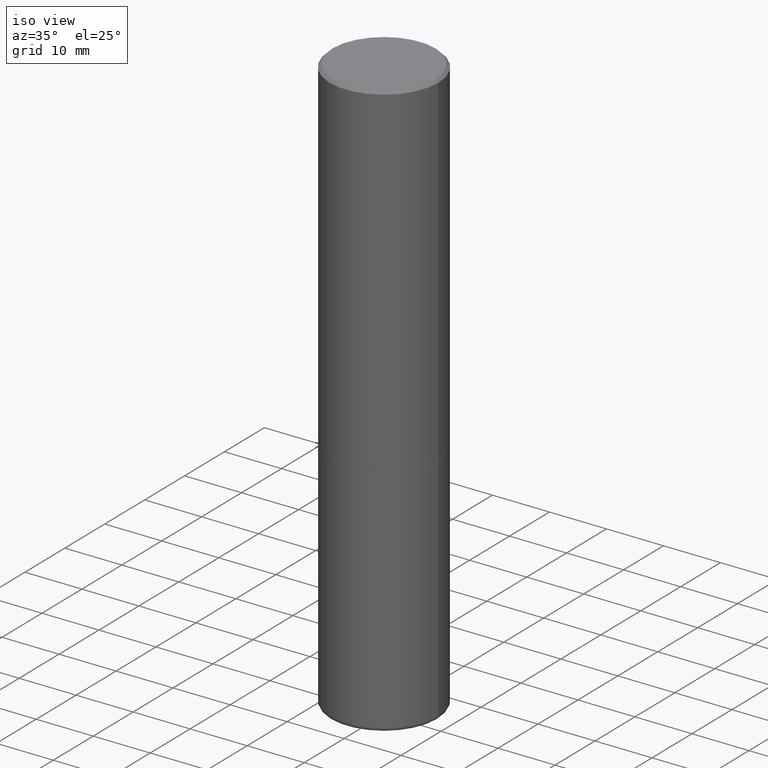
[diagram: clean part render]
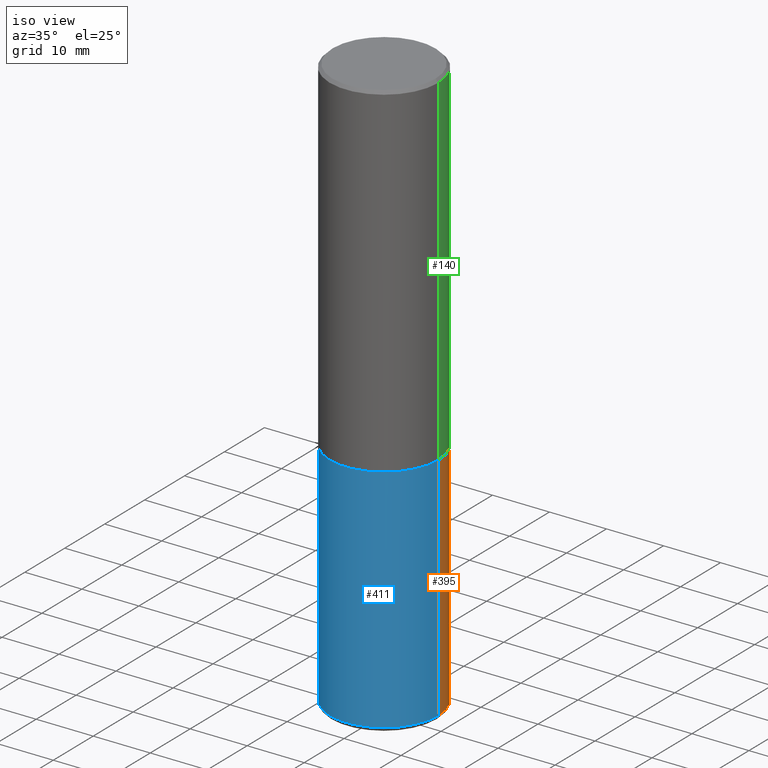
[diagram: same view with three faces highlighted in distinct colors, each labeled with its STEP entity id]
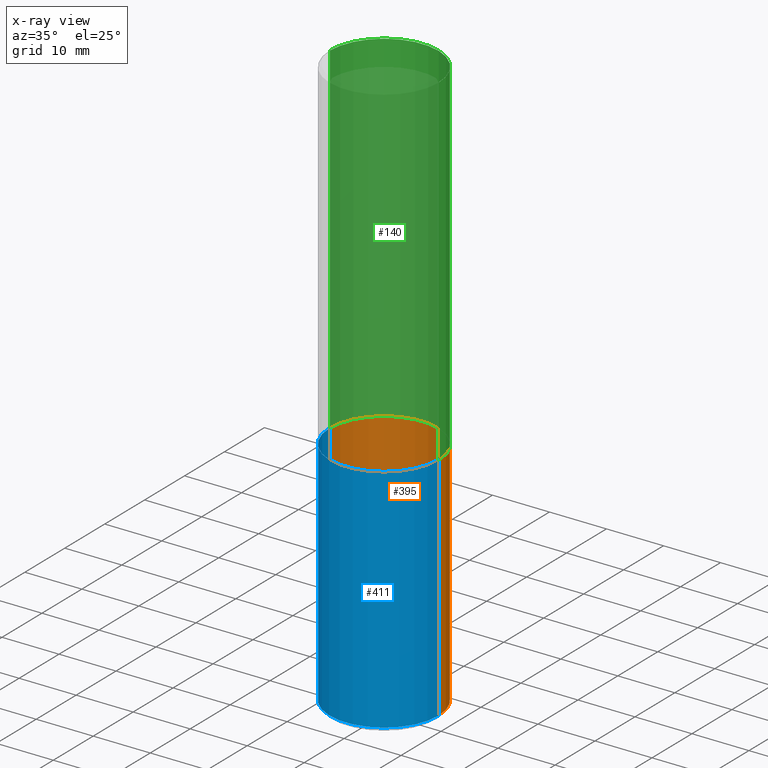
[diagram: x-ray of the same camera — body ghosted, the three highlighted faces saturated]
A machine part, iso view with three faces highlighted in distinct colors.
The next image is the same camera in x-ray (body ghosted, the three faces saturated) — at least one of them is partly hidden behind the body in this view.
Their STEP definitions:

[orange] entity #395 — the highlighted cylindrical surface (partial cylindrical patch) has radius 9.525 mm, axis along (-0, 0, 1).
#19 = DIRECTION ( 'NONE',  ( -2.445468806185136597E-29, 3.491481338843145583E-15, 1.000000000000000000 ) ) ;
#32 = EDGE_CURVE ( 'NONE', #478, #295, #380, .T. ) ;
#34 = CARTESIAN_POINT ( 'NONE',  ( 0.3749999999999993894, -2.618611004132345678E-15, 1.828566290923473120E-29 ) ) ;
#42 = CARTESIAN_POINT ( 'NONE',  ( -0.3749999999999992784, -8.412191282553172474E-15, -3.970001142308074993 ) ) ;
#48 = VERTEX_POINT ( 'NONE', #262 ) ;
#52 = EDGE_CURVE ( 'NONE', #478, #223, #317, .T. ) ;
#53 = DIRECTION ( 'NONE',  ( 1.000000000000000000, -6.982962677686264344E-15, 0.000000000000000000 ) ) ;
#59 = CARTESIAN_POINT ( 'NONE',  ( 0.000000000000000000, 0.000000000000000000, 0.000000000000000000 ) ) ;
#70 = CARTESIAN_POINT ( 'NONE',  ( 9.708513954033757613E-29, -1.386118490355461518E-14, -3.970001142308074993 ) ) ;
#80 = DIRECTION ( 'NONE',  ( -2.445468806185136877E-29, 3.491481338843145188E-15, 1.000000000000000000 ) ) ;
#95 = CARTESIAN_POINT ( 'NONE',  ( 0.3749999999999992784, -1.647979590768695889E-14, -3.970001142308074993 ) ) ;
#109 = AXIS2_PLACEMENT_3D ( 'NONE', #70, #145, #186 ) ;
#133 = EDGE_CURVE ( 'NONE', #295, #48, #200, .T. ) ;
#145 = DIRECTION ( 'NONE',  ( -2.445468806185136597E-29, 3.491481338843145583E-15, 1.000000000000000000 ) ) ;
#186 = DIRECTION ( 'NONE',  ( 1.000000000000000000, -6.982962677686266711E-15, 0.000000000000000000 ) ) ;
#192 = AXIS2_PLACEMENT_3D ( 'NONE', #59, #19, #288 ) ;
#200 = CIRCLE ( 'NONE', #236, 0.3749999999999996114 ) ;
#218 = CYLINDRICAL_SURFACE ( 'NONE', #192, 0.3749999999999993894 ) ;
#223 = VERTEX_POINT ( 'NONE', #42 ) ;
#236 = AXIS2_PLACEMENT_3D ( 'NONE', #348, #323, #53 ) ;
#262 = CARTESIAN_POINT ( 'NONE',  ( -0.3749999999999995559, -8.412191282553170896E-15, -2.375000000000000000 ) ) ;
#277 = EDGE_LOOP ( 'NONE', ( #338, #292, #298, #319 ) ) ;
#278 = LINE ( 'NONE', #431, #480 ) ;
#288 = DIRECTION ( 'NONE',  ( 1.000000000000000000, -6.982962677686266711E-15, 4.876176775795936353E-29 ) ) ;
#292 = ORIENTED_EDGE ( 'NONE', *, *, #442, .T. ) ;
#295 = VERTEX_POINT ( 'NONE', #331 ) ;
#298 = ORIENTED_EDGE ( 'NONE', *, *, #133, .F. ) ;
#317 = CIRCLE ( 'NONE', #109, 0.3749999999999992784 ) ;
#319 = ORIENTED_EDGE ( 'NONE', *, *, #32, .F. ) ;
#323 = DIRECTION ( 'NONE',  ( -2.445468806185136597E-29, 3.491481338843145583E-15, 1.000000000000000000 ) ) ;
#331 = CARTESIAN_POINT ( 'NONE',  ( 0.3749999999999996114, -1.091087918388481698E-14, -2.375000000000000000 ) ) ;
#338 = ORIENTED_EDGE ( 'NONE', *, *, #52, .T. ) ;
#344 = DIRECTION ( 'NONE',  ( -2.445468806185136877E-29, 3.491481338843145188E-15, 1.000000000000000000 ) ) ;
#348 = CARTESIAN_POINT ( 'NONE',  ( 5.807988414689699417E-29, -8.292268179752470118E-15, -2.375000000000000000 ) ) ;
#361 = VECTOR ( 'NONE', #344, 39.37007874015748143 ) ;
#380 = LINE ( 'NONE', #34, #361 ) ;
#395 = ADVANCED_FACE ( 'NONE', ( #473 ), #218, .T. ) ;
#431 = CARTESIAN_POINT ( 'NONE',  ( -0.3749999999999993894, 2.664535259100371358E-15, -1.844600658845586515E-29 ) ) ;
#442 = EDGE_CURVE ( 'NONE', #223, #48, #278, .T. ) ;
#473 = FACE_OUTER_BOUND ( 'NONE', #277, .T. ) ;
#478 = VERTEX_POINT ( 'NONE', #95 ) ;
#480 = VECTOR ( 'NONE', #80, 39.37007874015748143 ) ;

[blue] entity #411 — the highlighted cylindrical surface (partial cylindrical patch) has radius 9.525 mm, axis along (-0, 0, 1).
#32 = EDGE_CURVE ( 'NONE', #478, #295, #380, .T. ) ;
#34 = CARTESIAN_POINT ( 'NONE',  ( 0.3749999999999993894, -2.618611004132345678E-15, 1.828566290923473120E-29 ) ) ;
#42 = CARTESIAN_POINT ( 'NONE',  ( -0.3749999999999992784, -8.412191282553172474E-15, -3.970001142308074993 ) ) ;
#48 = VERTEX_POINT ( 'NONE', #262 ) ;
#64 = ORIENTED_EDGE ( 'NONE', *, *, #275, .F. ) ;
#71 = EDGE_CURVE ( 'NONE', #223, #478, #481, .T. ) ;
#80 = DIRECTION ( 'NONE',  ( -2.445468806185136877E-29, 3.491481338843145188E-15, 1.000000000000000000 ) ) ;
#95 = CARTESIAN_POINT ( 'NONE',  ( 0.3749999999999992784, -1.647979590768695889E-14, -3.970001142308074993 ) ) ;
#121 = CIRCLE ( 'NONE', #394, 0.3749999999999996114 ) ;
#127 = CARTESIAN_POINT ( 'NONE',  ( 0.000000000000000000, 0.000000000000000000, 0.000000000000000000 ) ) ;
#154 = AXIS2_PLACEMENT_3D ( 'NONE', #378, #460, #491 ) ;
#207 = ORIENTED_EDGE ( 'NONE', *, *, #32, .T. ) ;
#213 = DIRECTION ( 'NONE',  ( -2.445468806185136597E-29, 3.491481338843145583E-15, 1.000000000000000000 ) ) ;
#223 = VERTEX_POINT ( 'NONE', #42 ) ;
#226 = EDGE_LOOP ( 'NONE', ( #335, #373, #207, #64 ) ) ;
#250 = CARTESIAN_POINT ( 'NONE',  ( 5.807988414689699417E-29, -8.292268179752470118E-15, -2.375000000000000000 ) ) ;
#262 = CARTESIAN_POINT ( 'NONE',  ( -0.3749999999999995559, -8.412191282553170896E-15, -2.375000000000000000 ) ) ;
#275 = EDGE_CURVE ( 'NONE', #48, #295, #121, .T. ) ;
#278 = LINE ( 'NONE', #431, #480 ) ;
#291 = DIRECTION ( 'NONE',  ( -2.445468806185136597E-29, 3.491481338843145583E-15, 1.000000000000000000 ) ) ;
#295 = VERTEX_POINT ( 'NONE', #331 ) ;
#331 = CARTESIAN_POINT ( 'NONE',  ( 0.3749999999999996114, -1.091087918388481698E-14, -2.375000000000000000 ) ) ;
#335 = ORIENTED_EDGE ( 'NONE', *, *, #442, .F. ) ;
#344 = DIRECTION ( 'NONE',  ( -2.445468806185136877E-29, 3.491481338843145188E-15, 1.000000000000000000 ) ) ;
#353 = AXIS2_PLACEMENT_3D ( 'NONE', #127, #291, #365 ) ;
#360 = FACE_OUTER_BOUND ( 'NONE', #226, .T. ) ;
#361 = VECTOR ( 'NONE', #344, 39.37007874015748143 ) ;
#365 = DIRECTION ( 'NONE',  ( 1.000000000000000000, -6.982962677686266711E-15, 4.876176775795936353E-29 ) ) ;
#373 = ORIENTED_EDGE ( 'NONE', *, *, #71, .T. ) ;
#378 = CARTESIAN_POINT ( 'NONE',  ( 9.708513954033757613E-29, -1.386118490355461518E-14, -3.970001142308074993 ) ) ;
#380 = LINE ( 'NONE', #34, #361 ) ;
#394 = AXIS2_PLACEMENT_3D ( 'NONE', #250, #213, #479 ) ;
#411 = ADVANCED_FACE ( 'NONE', ( #360 ), #477, .T. ) ;
#431 = CARTESIAN_POINT ( 'NONE',  ( -0.3749999999999993894, 2.664535259100371358E-15, -1.844600658845586515E-29 ) ) ;
#442 = EDGE_CURVE ( 'NONE', #223, #48, #278, .T. ) ;
#460 = DIRECTION ( 'NONE',  ( -2.445468806185136597E-29, 3.491481338843145583E-15, 1.000000000000000000 ) ) ;
#477 = CYLINDRICAL_SURFACE ( 'NONE', #353, 0.3749999999999993894 ) ;
#478 = VERTEX_POINT ( 'NONE', #95 ) ;
#479 = DIRECTION ( 'NONE',  ( 1.000000000000000000, -6.982962677686264344E-15, 0.000000000000000000 ) ) ;
#480 = VECTOR ( 'NONE', #80, 39.37007874015748143 ) ;
#481 = CIRCLE ( 'NONE', #154, 0.3749999999999992784 ) ;
#491 = DIRECTION ( 'NONE',  ( 1.000000000000000000, -6.982962677686266711E-15, 0.000000000000000000 ) ) ;

[green] entity #140 — the highlighted cylindrical surface (partial cylindrical patch) has radius 9.525 mm, axis along (-0, 0, 1).
#6 = FACE_OUTER_BOUND ( 'NONE', #88, .T. ) ;
#10 = VECTOR ( 'NONE', #208, 39.37007874015748143 ) ;
#17 = VERTEX_POINT ( 'NONE', #230 ) ;
#26 = ORIENTED_EDGE ( 'NONE', *, *, #282, .T. ) ;
#49 = AXIS2_PLACEMENT_3D ( 'NONE', #51, #355, #120 ) ;
#51 = CARTESIAN_POINT ( 'NONE',  ( 5.805542945883513814E-29, -8.288776698413627111E-15, -2.373999999999999666 ) ) ;
#56 = CARTESIAN_POINT ( 'NONE',  ( -0.3749999999999993894, 2.664535259100371358E-15, -1.844600658845586515E-29 ) ) ;
#60 = ORIENTED_EDGE ( 'NONE', *, *, #180, .F. ) ;
#83 = CARTESIAN_POINT ( 'NONE',  ( -0.3749999999999992784, 2.548781377355481985E-15, -0.02000000000000016695 ) ) ;
#88 = EDGE_LOOP ( 'NONE', ( #161, #26, #60, #116 ) ) ;
#93 = CARTESIAN_POINT ( 'NONE',  ( -0.3749999999999995559, -1.514767903494871085E-15, -2.373999999999999666 ) ) ;
#115 = CYLINDRICAL_SURFACE ( 'NONE', #422, 0.3749999999999993894 ) ;
#116 = ORIENTED_EDGE ( 'NONE', *, *, #304, .F. ) ;
#117 = DIRECTION ( 'NONE',  ( 1.000000000000000000, -6.982962677686266711E-15, 4.876176775795936353E-29 ) ) ;
#120 = DIRECTION ( 'NONE',  ( 1.000000000000000000, -6.982962677686264344E-15, 0.000000000000000000 ) ) ;
#140 = ADVANCED_FACE ( 'NONE', ( #6 ), #115, .T. ) ;
#161 = ORIENTED_EDGE ( 'NONE', *, *, #221, .T. ) ;
#163 = LINE ( 'NONE', #475, #177 ) ;
#166 = VERTEX_POINT ( 'NONE', #83 ) ;
#177 = VECTOR ( 'NONE', #401, 39.37007874015748143 ) ;
#180 = EDGE_CURVE ( 'NONE', #440, #166, #484, .T. ) ;
#193 = CARTESIAN_POINT ( 'NONE',  ( 0.3749999999999992784, -2.642516375941182506E-15, -0.02000000000000016695 ) ) ;
#208 = DIRECTION ( 'NONE',  ( -2.445468806185136877E-29, 3.491481338843145188E-15, 1.000000000000000000 ) ) ;
#221 = EDGE_CURVE ( 'NONE', #17, #259, #328, .T. ) ;
#230 = CARTESIAN_POINT ( 'NONE',  ( 0.3749999999999996114, -1.090738770254597397E-14, -2.373999999999999666 ) ) ;
#259 = VERTEX_POINT ( 'NONE', #93 ) ;
#282 = EDGE_CURVE ( 'NONE', #259, #166, #397, .T. ) ;
#286 = CARTESIAN_POINT ( 'NONE',  ( 0.000000000000000000, 0.000000000000000000, 0.000000000000000000 ) ) ;
#304 = EDGE_CURVE ( 'NONE', #17, #440, #163, .T. ) ;
#328 = CIRCLE ( 'NONE', #49, 0.3749999999999996114 ) ;
#349 = DIRECTION ( 'NONE',  ( -2.445468806185136597E-29, 3.491481338843145583E-15, 1.000000000000000000 ) ) ;
#355 = DIRECTION ( 'NONE',  ( -2.445468806185136597E-29, 3.491481338843145583E-15, 1.000000000000000000 ) ) ;
#372 = AXIS2_PLACEMENT_3D ( 'NONE', #393, #385, #469 ) ;
#385 = DIRECTION ( 'NONE',  ( -2.445468806185136597E-29, 3.491481338843145583E-15, 1.000000000000000000 ) ) ;
#393 = CARTESIAN_POINT ( 'NONE',  ( 4.890937612370313446E-31, -6.982962677686349541E-17, -0.02000000000000016695 ) ) ;
#397 = LINE ( 'NONE', #56, #10 ) ;
#401 = DIRECTION ( 'NONE',  ( -2.445468806185136877E-29, 3.491481338843145188E-15, 1.000000000000000000 ) ) ;
#422 = AXIS2_PLACEMENT_3D ( 'NONE', #286, #349, #117 ) ;
#440 = VERTEX_POINT ( 'NONE', #193 ) ;
#469 = DIRECTION ( 'NONE',  ( 1.000000000000000000, -6.982962677686267499E-15, 0.000000000000000000 ) ) ;
#475 = CARTESIAN_POINT ( 'NONE',  ( 0.3749999999999993894, -2.618611004132345678E-15, 1.828566290923473120E-29 ) ) ;
#484 = CIRCLE ( 'NONE', #372, 0.3749999999999992784 ) ;